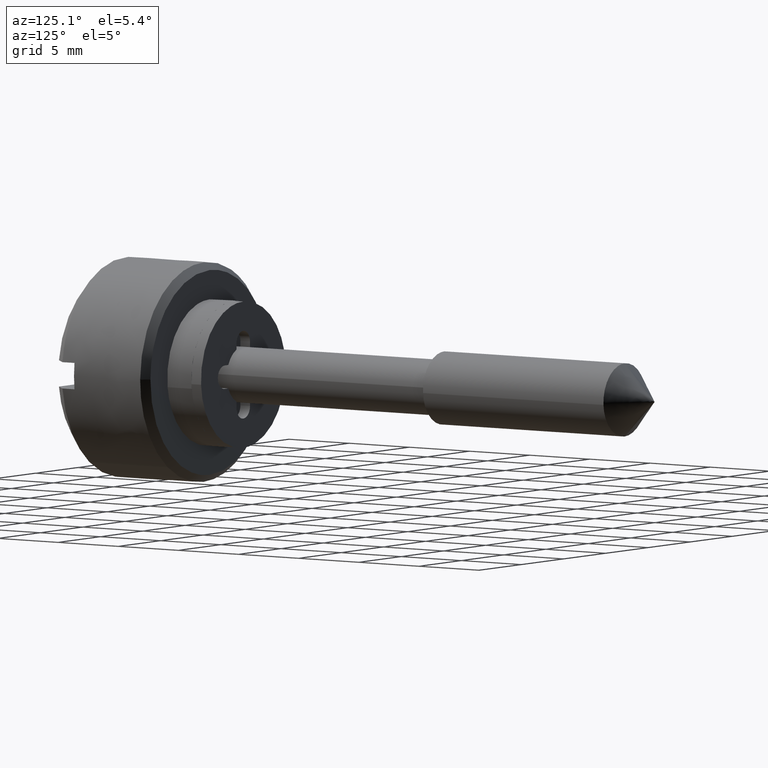
[diagram: clean part render]
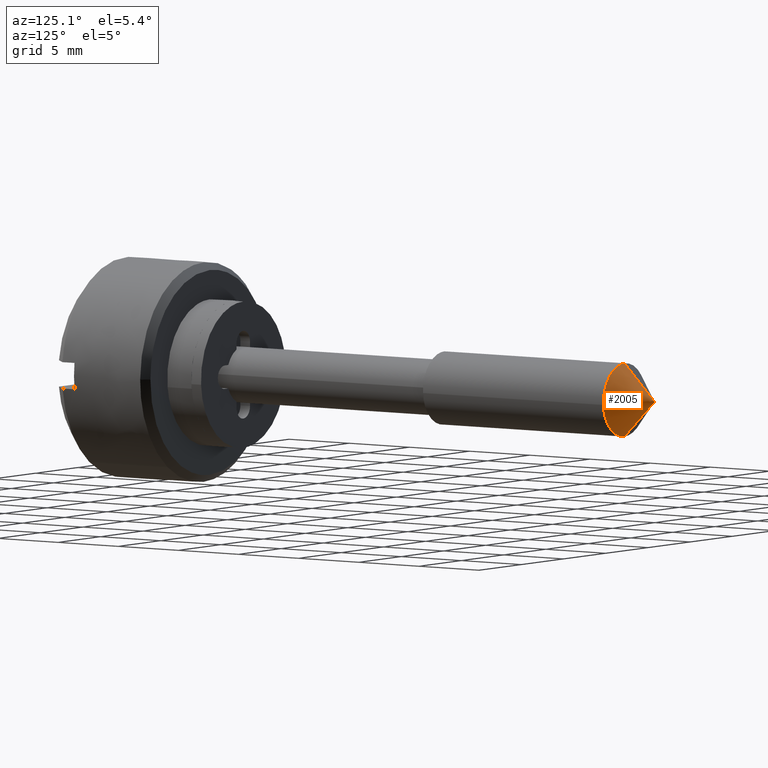
[diagram: same view with one face highlighted and labeled with its STEP entity id]
A machine part, auxiliary view. The second image highlights one B-rep face of the part: STEP entity #2005.
In plain terms, the highlighted face is a freeform B-spline surface patch.
Its self-contained STEP definition (entity closure, byte-faithful):
#1039=CARTESIAN_POINT('',(32.499999999999979,0.0,-2.499999999999984));
#1040=VERTEX_POINT('',#1039);
#1056=CARTESIAN_POINT('',(32.500000000000000,-2.495336996053995,-0.152621348848128));
#1057=VERTEX_POINT('',#1056);
#1058=CARTESIAN_POINT('',(32.500000000000000,0.0,-2.500000000000000));
#1059=CARTESIAN_POINT('',(32.500000000000007,-2.351765167243491,-2.500000000000000));
#1060=CARTESIAN_POINT('',(32.500000000000000,-2.495336996053995,-0.152621348848128));
#1068=(BOUNDED_CURVE()B_SPLINE_CURVE(2,(#1058,#1059,#1060),.UNSPECIFIED.,.F.,.U.)B_SPLINE_CURVE_WITH_KNOTS((3,3),(0.0,0.478665924480898),.UNSPECIFIED.)CURVE()GEOMETRIC_REPRESENTATION_ITEM()RATIONAL_B_SPLINE_CURVE((1.0,0.719603993284946,0.976072041669946))REPRESENTATION_ITEM(''));
#1069=EDGE_CURVE('',#1040,#1057,#1068,.T.);
#1136=CARTESIAN_POINT('',(32.499999999999979,0.0,2.499999999999985));
#1137=VERTEX_POINT('',#1136);
#1183=CARTESIAN_POINT('',(32.500000000000000,-2.495336996053995,-0.152621348848128));
#1184=CARTESIAN_POINT('',(32.500000000000000,-2.500000000000000,-0.076381908257488));
#1185=CARTESIAN_POINT('',(32.500000000000000,-2.500000000000000,0.0));
#1186=CARTESIAN_POINT('',(32.500000000000007,-2.500000000000000,2.500000000000000));
#1187=CARTESIAN_POINT('',(32.500000000000000,0.0,2.500000000000000));
#1195=(BOUNDED_CURVE()B_SPLINE_CURVE(2,(#1183,#1184,#1185,#1186,#1187),.UNSPECIFIED.,.F.,.U.)B_SPLINE_CURVE_WITH_KNOTS((3,2,3),(0.478665924480898,0.500000000000000,1.0),.UNSPECIFIED.)CURVE()GEOMETRIC_REPRESENTATION_ITEM()RATIONAL_B_SPLINE_CURVE((0.976072041669946,0.987502787901602,1.0,0.707106781186548,1.0))REPRESENTATION_ITEM(''));
#1196=EDGE_CURVE('',#1057,#1137,#1195,.T.);
#1971=CARTESIAN_POINT('',(35.0,0.0,0.0));
#1972=CARTESIAN_POINT('',(32.435937499999980,0.067119331520658,2.563183859820062));
#1973=CARTESIAN_POINT('',(34.999999999999993,0.0,0.0));
#1974=CARTESIAN_POINT('',(32.435937499999980,-2.633912877398667,2.633912877398676));
#1975=CARTESIAN_POINT('',(35.0,0.0,0.0));
#1976=CARTESIAN_POINT('',(32.435937499999980,-2.563183859820062,-0.067119331520650));
#1977=CARTESIAN_POINT('',(34.999999999999993,0.0,0.0));
#1978=CARTESIAN_POINT('',(32.435937499999980,-2.492454842241457,-2.768151540439976));
#1979=CARTESIAN_POINT('',(35.0,0.0,0.0));
#1980=CARTESIAN_POINT('',(32.435937499999980,0.201174025139667,-2.556158351025021));
#1988=(BOUNDED_SURFACE()B_SPLINE_SURFACE(1,2,((#1971,#1973,#1975,#1977,#1979),(#1972,#1974,#1976,#1978,#1980)),.UNSPECIFIED.,.F.,.F.,.U.)B_SPLINE_SURFACE_WITH_KNOTS((2,2),(3,2,3),(0.0,1.0),(0.0,1.0,2.0),.UNSPECIFIED.)GEOMETRIC_REPRESENTATION_ITEM()RATIONAL_B_SPLINE_SURFACE(((1.0,0.688354575693754,1.0,0.688354575693754,1.0),(1.0,0.688354575693754,1.0,0.688354575693754,1.0)))REPRESENTATION_ITEM('')SURFACE());
#1989=CARTESIAN_POINT('',(35.0,0.0,0.0));
#1990=VERTEX_POINT('',#1989);
#1991=CARTESIAN_POINT('',(35.0,0.0,0.0));
#1992=CARTESIAN_POINT('',(32.499999999999979,0.0,2.499999999999985));
#1993=QUASI_UNIFORM_CURVE('',1,(#1991,#1992),.UNSPECIFIED.,.F.,.U.);
#1994=EDGE_CURVE('',#1990,#1137,#1993,.T.);
#1995=ORIENTED_EDGE('',*,*,#1994,.T.);
#1996=ORIENTED_EDGE('',*,*,#1196,.F.);
#1997=ORIENTED_EDGE('',*,*,#1069,.F.);
#1998=CARTESIAN_POINT('',(35.0,0.0,0.0));
#1999=CARTESIAN_POINT('',(32.499999999999979,0.0,-2.499999999999984));
#2000=QUASI_UNIFORM_CURVE('',1,(#1998,#1999),.UNSPECIFIED.,.F.,.U.);
#2001=EDGE_CURVE('',#1990,#1040,#2000,.T.);
#2002=ORIENTED_EDGE('',*,*,#2001,.F.);
#2003=EDGE_LOOP('',(#1995,#1996,#1997,#2002));
#2004=FACE_OUTER_BOUND('',#2003,.T.);
#2005=ADVANCED_FACE('',(#2004),#1988,.T.);